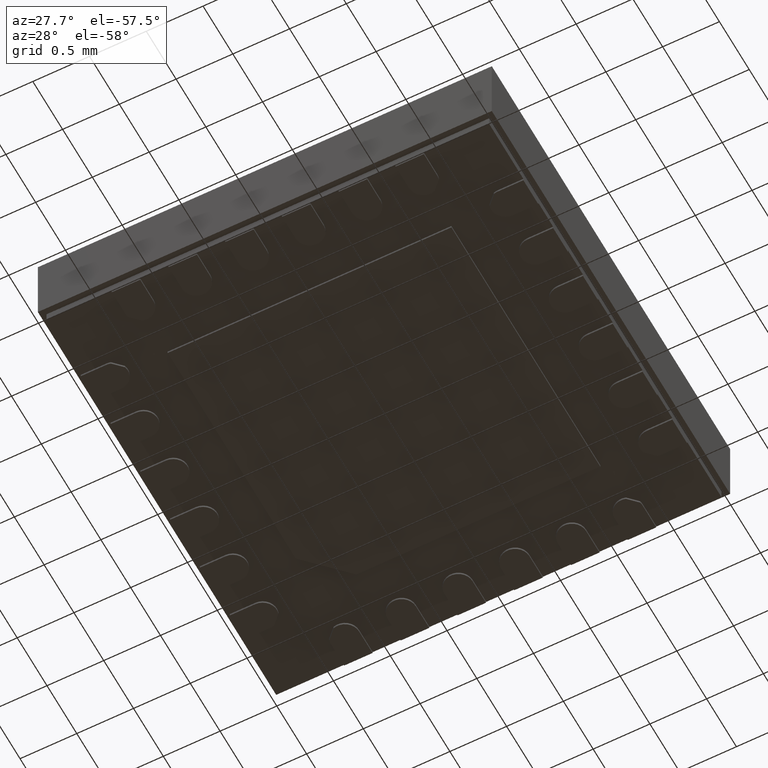
[diagram: clean part render]
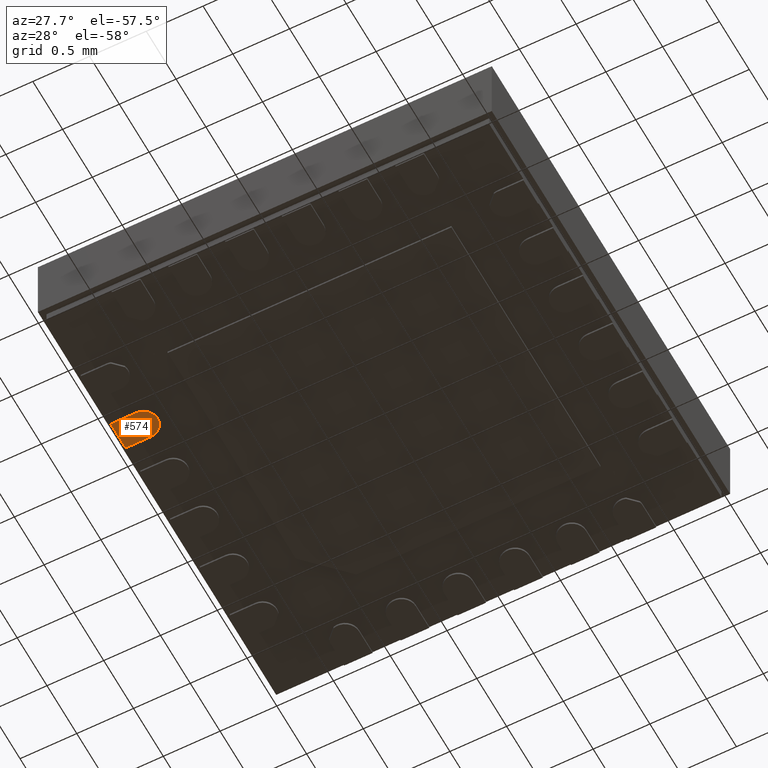
[diagram: same view with one face highlighted and labeled with its STEP entity id]
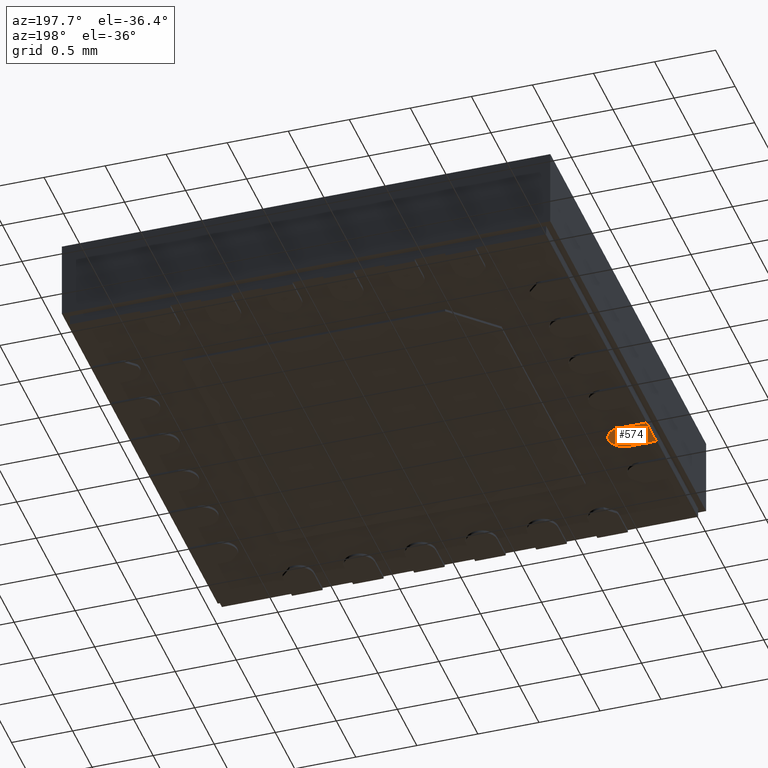
[diagram: same view with one face highlighted and labeled with its STEP entity id]
A machine part, auxiliary view. The second image highlights one B-rep face of the part: STEP entity #574.
A second angle (auxiliary view) of the same face is appended — the face is thin or edge-on in the first view.
In plain terms, the highlighted planar face has unit normal (0, 0, 1).
Its self-contained STEP definition (entity closure, byte-faithful):
#574=ADVANCED_FACE('',(#1491),#1492,.F.);
#1491=FACE_OUTER_BOUND('',#2804,.T.);
#1492=PLANE('',#2805);
#2804=EDGE_LOOP('',(#4215,#4216,#4217,#4218));
#2805=AXIS2_PLACEMENT_3D('',#4219,#4220,#4221);
#4215=ORIENTED_EDGE('',*,*,#7664,.T.);
#4216=ORIENTED_EDGE('',*,*,#7670,.F.);
#4217=ORIENTED_EDGE('',*,*,#7671,.F.);
#4218=ORIENTED_EDGE('',*,*,#7672,.F.);
#4219=CARTESIAN_POINT('',(-1.83162468709969,-0.73878345472144,0.0));
#4220=DIRECTION('',(0.0,0.0,1.0));
#4221=DIRECTION('',(1.0,0.0,0.0));
#7664=EDGE_CURVE('',#9154,#9158,#9160,.T.);
#7670=EDGE_CURVE('',#9168,#9158,#9169,.T.);
#7671=EDGE_CURVE('',#9170,#9168,#9171,.T.);
#7672=EDGE_CURVE('',#9154,#9170,#9172,.T.);
#9154=VERTEX_POINT('',#11342);
#9158=VERTEX_POINT('',#11348);
#9160=LINE('',#11351,#11352);
#9168=VERTEX_POINT('',#11363);
#9169=LINE('',#11364,#11365);
#9170=VERTEX_POINT('',#11366);
#9171=CIRCLE('',#11367,0.125);
#9172=LINE('',#11368,#11369);
#11342=CARTESIAN_POINT('',(-1.96121662991138,-0.863783454721468,0.0));
#11348=CARTESIAN_POINT('',(-1.96121662991138,-0.613783454721412,0.0));
#11351=CARTESIAN_POINT('',(-1.96121662991138,-0.363783454720673,0.0));
#11352=VECTOR('',#14213,1.0);
#11363=CARTESIAN_POINT('',(-1.73621662990965,-0.613783454721412,0.0));
#11364=CARTESIAN_POINT('',(-1.73621662990965,-0.613783454721412,0.0));
#11365=VECTOR('',#14217,1.0);
#11366=CARTESIAN_POINT('',(-1.73621662990965,-0.863783454721468,0.0));
#11367=AXIS2_PLACEMENT_3D('',#14218,#14219,#14220);
#11368=CARTESIAN_POINT('',(-2.01121662991133,-0.863783454721468,0.0));
#11369=VECTOR('',#14221,1.0);
#14213=DIRECTION('',(0.0,1.0,0.0));
#14217=DIRECTION('',(-1.0,0.0,0.0));
#14218=CARTESIAN_POINT('',(-1.73621662990965,-0.738783454721468,0.0));
#14219=DIRECTION('',(0.0,0.0,1.0));
#14220=DIRECTION('',(-1.77635683940025E-15,-1.0,0.0));
#14221=DIRECTION('',(1.0,0.0,0.0));